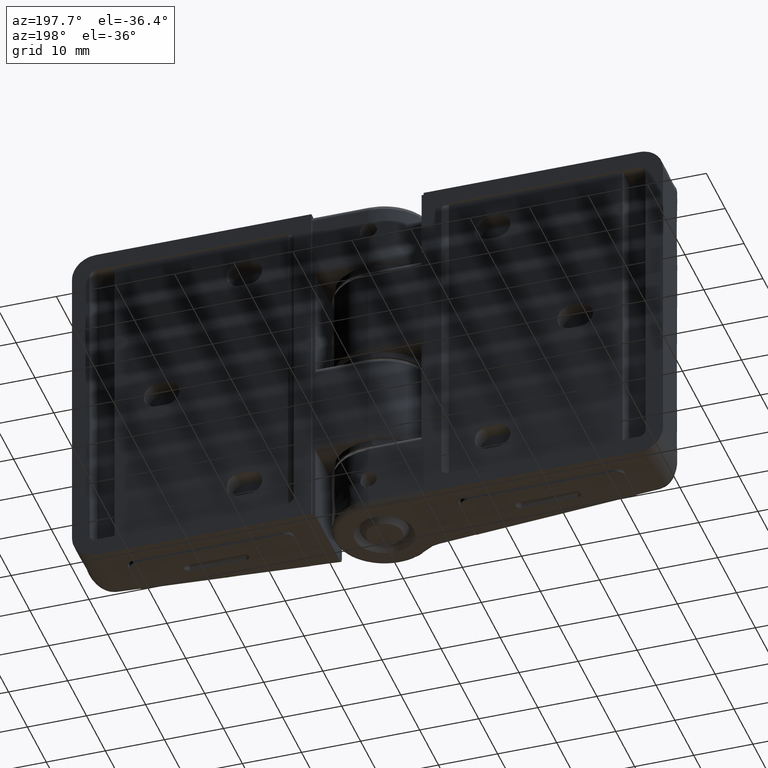
[diagram: clean part render]
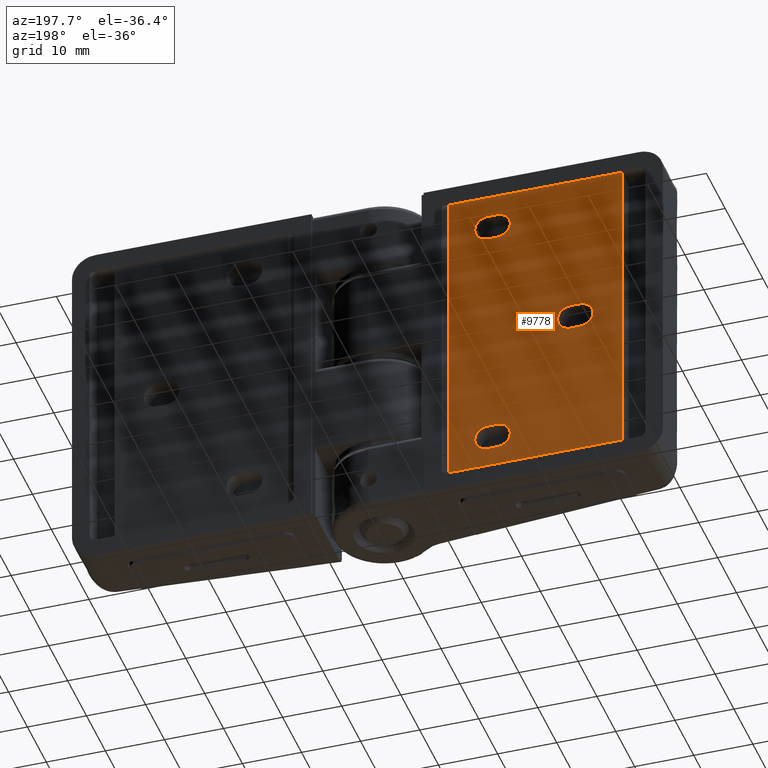
[diagram: same view with one face highlighted and labeled with its STEP entity id]
A machine part, auxiliary view. The second image highlights one B-rep face of the part: STEP entity #9778.
In plain terms, the highlighted face is a freeform B-spline surface patch.
Its self-contained STEP definition (entity closure, byte-faithful):
#8295=CARTESIAN_POINT('',(-13.618033988750000,8.500000000000000,3.0));
#8296=VERTEX_POINT('',#8295);
#8310=CARTESIAN_POINT('',(-13.618033988750000,8.500000000000000,57.0));
#8311=VERTEX_POINT('',#8310);
#8312=CARTESIAN_POINT('',(-13.618033988750000,8.500000000000000,57.0));
#8313=CARTESIAN_POINT('',(-13.618033988750000,8.500000000000000,3.0));
#8314=QUASI_UNIFORM_CURVE('',1,(#8312,#8313),.UNSPECIFIED.,.F.,.U.);
#8315=EDGE_CURVE('',#8311,#8296,#8314,.T.);
#9076=CARTESIAN_POINT('',(-21.750000000000000,8.500000000000000,11.250000000000000));
#9077=VERTEX_POINT('',#9076);
#9085=CARTESIAN_POINT('',(-20.250000000000000,8.500000000000000,11.250000000000000));
#9086=VERTEX_POINT('',#9085);
#9087=CARTESIAN_POINT('',(-21.750000000000000,8.500000000000000,11.250000000000000));
#9088=CARTESIAN_POINT('',(-20.250000000000000,8.500000000000000,11.250000000000000));
#9089=QUASI_UNIFORM_CURVE('',1,(#9087,#9088),.UNSPECIFIED.,.F.,.U.);
#9090=EDGE_CURVE('',#9077,#9086,#9089,.T.);
#9125=CARTESIAN_POINT('',(-21.749999960730001,8.500000000000000,6.750000000000000));
#9126=VERTEX_POINT('',#9125);
#9134=CARTESIAN_POINT('',(-21.749999960730001,8.500000000000000,6.750000000000000));
#9135=CARTESIAN_POINT('',(-23.049038075133321,8.500000000000000,6.749999977327456));
#9136=CARTESIAN_POINT('',(-23.698557145424989,8.500000000000000,7.874999977327457));
#9137=CARTESIAN_POINT('',(-24.348076215716645,8.500000000000000,8.999999977327457));
#9138=CARTESIAN_POINT('',(-23.698557165059981,8.500000000000000,10.124999988663729));
#9139=CARTESIAN_POINT('',(-23.049038114403327,8.500000000000000,11.250000000000000));
#9140=CARTESIAN_POINT('',(-21.750000000000000,8.500000000000000,11.250000000000000));
#9148=(BOUNDED_CURVE()B_SPLINE_CURVE(2,(#9134,#9135,#9136,#9137,#9138,#9139,#9140),.UNSPECIFIED.,.F.,.U.)B_SPLINE_CURVE_WITH_KNOTS((3,2,2,3),(0.0,0.333333333333333,0.666666666666667,1.0),.UNSPECIFIED.)CURVE()GEOMETRIC_REPRESENTATION_ITEM()RATIONAL_B_SPLINE_CURVE((1.0,0.866025402329994,1.0,0.866025402329994,1.0,0.866025402329994,1.0))REPRESENTATION_ITEM(''));
#9149=EDGE_CURVE('',#9126,#9077,#9148,.T.);
#9175=CARTESIAN_POINT('',(-20.250000000000000,8.500000000000000,6.750000000000000));
#9176=VERTEX_POINT('',#9175);
#9184=CARTESIAN_POINT('',(-20.250000000000000,8.500000000000000,6.750000000000000));
#9185=CARTESIAN_POINT('',(-21.749999960730001,8.500000000000000,6.750000000000000));
#9186=QUASI_UNIFORM_CURVE('',1,(#9184,#9185),.UNSPECIFIED.,.F.,.U.);
#9187=EDGE_CURVE('',#9176,#9126,#9186,.T.);
#9217=CARTESIAN_POINT('',(-20.250000000000000,8.500000000000000,11.250000000000000));
#9218=CARTESIAN_POINT('',(-18.000000000000007,8.500000000000000,11.250000000000000));
#9219=CARTESIAN_POINT('',(-18.0,8.500000000000000,9.0));
#9220=CARTESIAN_POINT('',(-18.000000000000007,8.500000000000000,6.749999999999998));
#9221=CARTESIAN_POINT('',(-20.250000000000000,8.500000000000000,6.749999999999999));
#9229=(BOUNDED_CURVE()B_SPLINE_CURVE(2,(#9217,#9218,#9219,#9220,#9221),.UNSPECIFIED.,.F.,.U.)B_SPLINE_CURVE_WITH_KNOTS((3,2,3),(0.0,0.500000000000000,1.0),.UNSPECIFIED.)CURVE()GEOMETRIC_REPRESENTATION_ITEM()RATIONAL_B_SPLINE_CURVE((1.0,0.707106781186547,1.0,0.707106781186547,1.0))REPRESENTATION_ITEM(''));
#9230=EDGE_CURVE('',#9086,#9176,#9229,.T.);
#9270=CARTESIAN_POINT('',(-35.750000000000000,8.500000000000000,32.250000000000000));
#9271=VERTEX_POINT('',#9270);
#9279=CARTESIAN_POINT('',(-34.250000000000000,8.500000000000000,32.250000000000000));
#9280=VERTEX_POINT('',#9279);
#9281=CARTESIAN_POINT('',(-35.750000000000000,8.500000000000000,32.250000000000000));
#9282=CARTESIAN_POINT('',(-34.250000000000000,8.500000000000000,32.250000000000000));
#9283=QUASI_UNIFORM_CURVE('',1,(#9281,#9282),.UNSPECIFIED.,.F.,.U.);
#9284=EDGE_CURVE('',#9271,#9280,#9283,.T.);
#9319=CARTESIAN_POINT('',(-35.749999960730001,8.500000000000000,27.750000000000000));
#9320=VERTEX_POINT('',#9319);
#9328=CARTESIAN_POINT('',(-35.749999960730001,8.500000000000000,27.750000000000000));
#9329=CARTESIAN_POINT('',(-37.049038075133332,8.500000000000000,27.749999977327455));
#9330=CARTESIAN_POINT('',(-37.698557145424992,8.500000000000000,28.874999977327459));
#9331=CARTESIAN_POINT('',(-38.348076215716652,8.500000000000000,29.999999977327459));
#9332=CARTESIAN_POINT('',(-37.698557165059981,8.500000000000000,31.124999988663731));
#9333=CARTESIAN_POINT('',(-37.049038114403317,8.500000000000000,32.250000000000000));
#9334=CARTESIAN_POINT('',(-35.750000000000000,8.500000000000000,32.250000000000000));
#9342=(BOUNDED_CURVE()B_SPLINE_CURVE(2,(#9328,#9329,#9330,#9331,#9332,#9333,#9334),.UNSPECIFIED.,.F.,.U.)B_SPLINE_CURVE_WITH_KNOTS((3,2,2,3),(0.0,0.333333333333333,0.666666666666667,1.0),.UNSPECIFIED.)CURVE()GEOMETRIC_REPRESENTATION_ITEM()RATIONAL_B_SPLINE_CURVE((1.0,0.866025402329994,1.0,0.866025402329994,1.0,0.866025402329994,1.0))REPRESENTATION_ITEM(''));
#9343=EDGE_CURVE('',#9320,#9271,#9342,.T.);
#9369=CARTESIAN_POINT('',(-34.250000000000000,8.500000000000000,27.750000000000000));
#9370=VERTEX_POINT('',#9369);
#9378=CARTESIAN_POINT('',(-34.250000000000000,8.500000000000000,27.750000000000000));
#9379=CARTESIAN_POINT('',(-35.749999960730001,8.500000000000000,27.750000000000000));
#9380=QUASI_UNIFORM_CURVE('',1,(#9378,#9379),.UNSPECIFIED.,.F.,.U.);
#9381=EDGE_CURVE('',#9370,#9320,#9380,.T.);
#9411=CARTESIAN_POINT('',(-34.250000000000000,8.500000000000000,32.250000000000000));
#9412=CARTESIAN_POINT('',(-32.0,8.500000000000000,32.250000000000007));
#9413=CARTESIAN_POINT('',(-32.0,8.500000000000000,30.0));
#9414=CARTESIAN_POINT('',(-32.0,8.500000000000000,27.750000000000011));
#9415=CARTESIAN_POINT('',(-34.250000000000000,8.500000000000000,27.750000000000000));
#9423=(BOUNDED_CURVE()B_SPLINE_CURVE(2,(#9411,#9412,#9413,#9414,#9415),.UNSPECIFIED.,.F.,.U.)B_SPLINE_CURVE_WITH_KNOTS((3,2,3),(0.0,0.500000000000000,1.0),.UNSPECIFIED.)CURVE()GEOMETRIC_REPRESENTATION_ITEM()RATIONAL_B_SPLINE_CURVE((1.0,0.707106781186547,1.0,0.707106781186547,1.0))REPRESENTATION_ITEM(''));
#9424=EDGE_CURVE('',#9280,#9370,#9423,.T.);
#9464=CARTESIAN_POINT('',(-21.750000000000000,8.500000000000000,53.250000000000000));
#9465=VERTEX_POINT('',#9464);
#9473=CARTESIAN_POINT('',(-20.250000000000000,8.500000000000000,53.250000000000000));
#9474=VERTEX_POINT('',#9473);
#9475=CARTESIAN_POINT('',(-21.750000000000000,8.500000000000000,53.250000000000000));
#9476=CARTESIAN_POINT('',(-20.250000000000000,8.500000000000000,53.250000000000000));
#9477=QUASI_UNIFORM_CURVE('',1,(#9475,#9476),.UNSPECIFIED.,.F.,.U.);
#9478=EDGE_CURVE('',#9465,#9474,#9477,.T.);
#9513=CARTESIAN_POINT('',(-21.749999960730001,8.500000000000000,48.750000000000000));
#9514=VERTEX_POINT('',#9513);
#9522=CARTESIAN_POINT('',(-21.749999960730001,8.500000000000000,48.749999999999993));
#9523=CARTESIAN_POINT('',(-23.049038075133321,8.500000000000000,48.749999977327462));
#9524=CARTESIAN_POINT('',(-23.698557145424989,8.500000000000000,49.874999977327448));
#9525=CARTESIAN_POINT('',(-24.348076215716645,8.500000000000000,50.999999977327455));
#9526=CARTESIAN_POINT('',(-23.698557165059981,8.500000000000000,52.124999988663717));
#9527=CARTESIAN_POINT('',(-23.049038114403327,8.500000000000000,53.250000000000000));
#9528=CARTESIAN_POINT('',(-21.750000000000000,8.500000000000000,53.250000000000000));
#9536=(BOUNDED_CURVE()B_SPLINE_CURVE(2,(#9522,#9523,#9524,#9525,#9526,#9527,#9528),.UNSPECIFIED.,.F.,.U.)B_SPLINE_CURVE_WITH_KNOTS((3,2,2,3),(0.0,0.333333333333333,0.666666666666667,1.0),.UNSPECIFIED.)CURVE()GEOMETRIC_REPRESENTATION_ITEM()RATIONAL_B_SPLINE_CURVE((1.0,0.866025402329994,1.0,0.866025402329994,1.0,0.866025402329994,1.0))REPRESENTATION_ITEM(''));
#9537=EDGE_CURVE('',#9514,#9465,#9536,.T.);
#9563=CARTESIAN_POINT('',(-20.250000000000000,8.500000000000000,48.750000000000000));
#9564=VERTEX_POINT('',#9563);
#9572=CARTESIAN_POINT('',(-20.250000000000000,8.500000000000000,48.750000000000000));
#9573=CARTESIAN_POINT('',(-21.749999960730001,8.500000000000000,48.750000000000000));
#9574=QUASI_UNIFORM_CURVE('',1,(#9572,#9573),.UNSPECIFIED.,.F.,.U.);
#9575=EDGE_CURVE('',#9564,#9514,#9574,.T.);
#9605=CARTESIAN_POINT('',(-20.250000000000000,8.500000000000000,53.250000000000000));
#9606=CARTESIAN_POINT('',(-18.000000000000007,8.500000000000000,53.249999999999993));
#9607=CARTESIAN_POINT('',(-18.0,8.500000000000000,51.0));
#9608=CARTESIAN_POINT('',(-18.000000000000007,8.500000000000000,48.750000000000007));
#9609=CARTESIAN_POINT('',(-20.250000000000000,8.500000000000000,48.749999999999993));
#9617=(BOUNDED_CURVE()B_SPLINE_CURVE(2,(#9605,#9606,#9607,#9608,#9609),.UNSPECIFIED.,.F.,.U.)B_SPLINE_CURVE_WITH_KNOTS((3,2,3),(0.0,0.500000000000000,1.0),.UNSPECIFIED.)CURVE()GEOMETRIC_REPRESENTATION_ITEM()RATIONAL_B_SPLINE_CURVE((1.0,0.707106781186547,1.0,0.707106781186547,1.0))REPRESENTATION_ITEM(''));
#9618=EDGE_CURVE('',#9474,#9564,#9617,.T.);
#9733=CARTESIAN_POINT('',(-44.467629040340967,8.500000000000000,59.697299895337530));
#9734=CARTESIAN_POINT('',(-12.150406261885269,8.500000000000000,59.697299895337530));
#9735=CARTESIAN_POINT('',(-44.467629040340967,8.500000000000000,0.302698656269608));
#9736=CARTESIAN_POINT('',(-12.150406261885269,8.500000000000000,0.302698656269608));
#9737=B_SPLINE_SURFACE_WITH_KNOTS('',1,1,((#9733,#9735),(#9734,#9736)),.UNSPECIFIED.,.F.,.F.,.U.,(2,2),(2,2),(0.0,32.317222778455701),(0.0,59.394601239067917),.UNSPECIFIED.);
#9738=CARTESIAN_POINT('',(-43.0,8.500000000000000,57.0));
#9739=VERTEX_POINT('',#9738);
#9740=CARTESIAN_POINT('',(-43.0,8.500000000000000,57.0));
#9741=CARTESIAN_POINT('',(-13.618033988750000,8.500000000000000,57.0));
#9742=QUASI_UNIFORM_CURVE('',1,(#9740,#9741),.UNSPECIFIED.,.F.,.U.);
#9743=EDGE_CURVE('',#9739,#8311,#9742,.T.);
#9744=ORIENTED_EDGE('',*,*,#9743,.T.);
#9745=ORIENTED_EDGE('',*,*,#8315,.T.);
#9746=CARTESIAN_POINT('',(-43.0,8.500000000000000,3.0));
#9747=VERTEX_POINT('',#9746);
#9748=CARTESIAN_POINT('',(-13.618033988750000,8.500000000000000,3.0));
#9749=CARTESIAN_POINT('',(-43.0,8.500000000000000,3.0));
#9750=QUASI_UNIFORM_CURVE('',1,(#9748,#9749),.UNSPECIFIED.,.F.,.U.);
#9751=EDGE_CURVE('',#8296,#9747,#9750,.T.);
#9752=ORIENTED_EDGE('',*,*,#9751,.T.);
#9753=CARTESIAN_POINT('',(-43.0,8.500000000000000,3.0));
#9754=CARTESIAN_POINT('',(-43.0,8.500000000000000,57.0));
#9755=QUASI_UNIFORM_CURVE('',1,(#9753,#9754),.UNSPECIFIED.,.F.,.U.);
#9756=EDGE_CURVE('',#9747,#9739,#9755,.T.);
#9757=ORIENTED_EDGE('',*,*,#9756,.T.);
#9758=EDGE_LOOP('',(#9744,#9745,#9752,#9757));
#9759=FACE_OUTER_BOUND('',#9758,.T.);
#9760=ORIENTED_EDGE('',*,*,#9343,.F.);
#9761=ORIENTED_EDGE('',*,*,#9381,.F.);
#9762=ORIENTED_EDGE('',*,*,#9424,.F.);
#9763=ORIENTED_EDGE('',*,*,#9284,.F.);
#9764=EDGE_LOOP('',(#9760,#9761,#9762,#9763));
#9765=FACE_BOUND('',#9764,.T.);
#9766=ORIENTED_EDGE('',*,*,#9537,.F.);
#9767=ORIENTED_EDGE('',*,*,#9575,.F.);
#9768=ORIENTED_EDGE('',*,*,#9618,.F.);
#9769=ORIENTED_EDGE('',*,*,#9478,.F.);
#9770=EDGE_LOOP('',(#9766,#9767,#9768,#9769));
#9771=FACE_BOUND('',#9770,.T.);
#9772=ORIENTED_EDGE('',*,*,#9149,.F.);
#9773=ORIENTED_EDGE('',*,*,#9187,.F.);
#9774=ORIENTED_EDGE('',*,*,#9230,.F.);
#9775=ORIENTED_EDGE('',*,*,#9090,.F.);
#9776=EDGE_LOOP('',(#9772,#9773,#9774,#9775));
#9777=FACE_BOUND('',#9776,.T.);
#9778=ADVANCED_FACE('',(#9759,#9765,#9771,#9777),#9737,.T.);